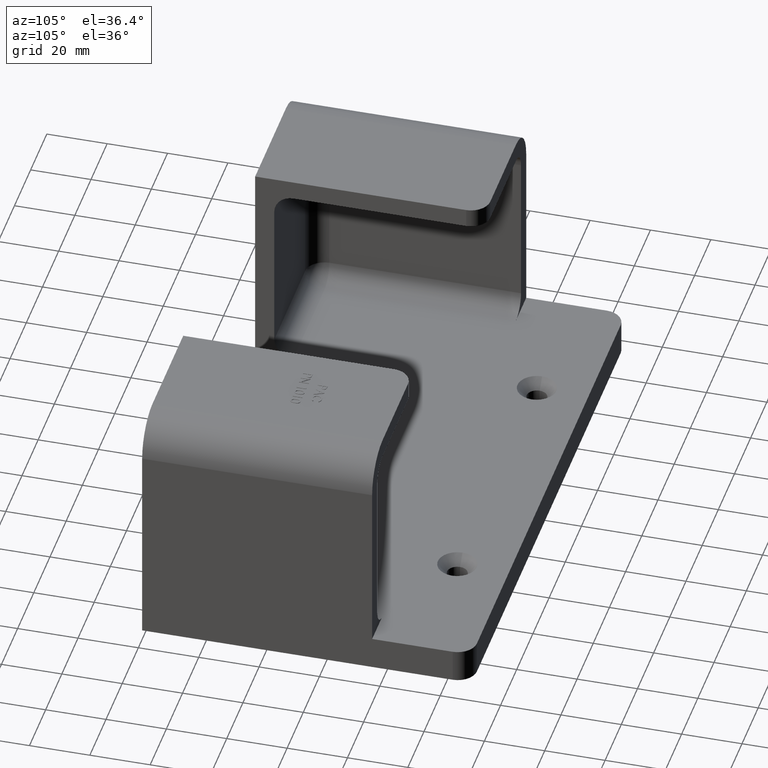
[diagram: clean part render]
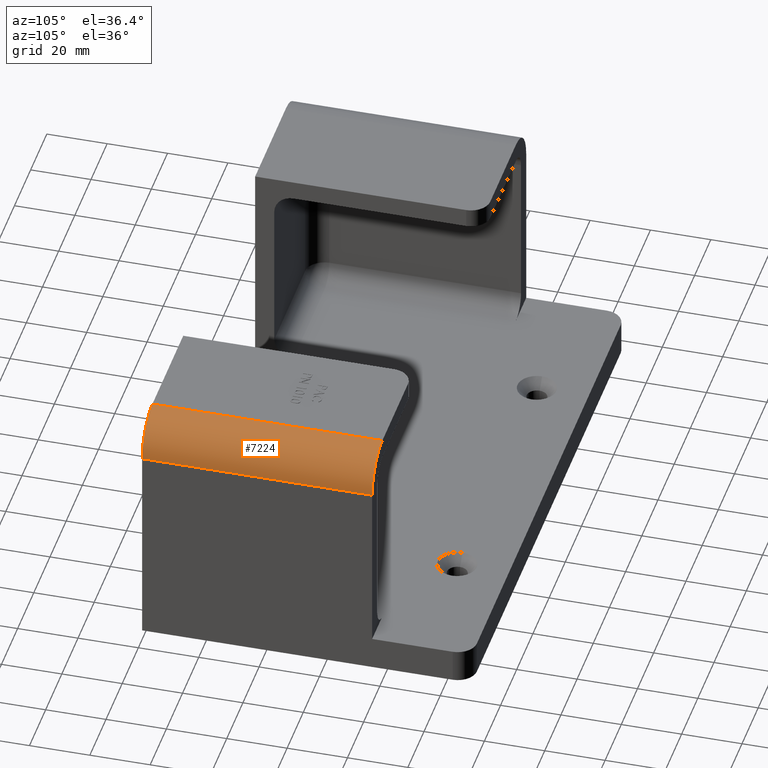
[diagram: same view with one face highlighted and labeled with its STEP entity id]
A machine part, auxiliary view. The second image highlights one B-rep face of the part: STEP entity #7224.
In plain terms, the highlighted cylindrical surface (partial cylindrical patch) has radius 12.7 mm, axis along (-0, -1, -0).
Its self-contained STEP definition (entity closure, byte-faithful):
#65 = ORIENTED_EDGE ( 'NONE', *, *, #2860, .T. ) ;
#82 = ORIENTED_EDGE ( 'NONE', *, *, #2859, .F. ) ;
#83 = ORIENTED_EDGE ( 'NONE', *, *, #2858, .T. ) ;
#141 = EDGE_LOOP ( 'NONE', ( #82, #83, #1922, #65 ) ) ;
#535 = VERTEX_POINT ( 'NONE', #5577 ) ;
#538 = VERTEX_POINT ( 'NONE', #5481 ) ;
#889 = DIRECTION ( 'NONE',  ( -0.0000000000000000000, -1.000000000000000000, -0.0000000000000000000 ) ) ;
#891 = DIRECTION ( 'NONE',  ( 0.0000000000000000000, 1.000000000000000000, -0.0000000000000000000 ) ) ;
#892 = DIRECTION ( 'NONE',  ( 0.0000000000000000000, 0.0000000000000000000, -1.000000000000000000 ) ) ;
#1382 = CARTESIAN_POINT ( 'NONE',  ( 3.749999999999999100, 4.299999999999999800, 2.687499999999999600 ) ) ;
#1922 = ORIENTED_EDGE ( 'NONE', *, *, #2794, .T. ) ;
#2367 = AXIS2_PLACEMENT_3D ( 'NONE', #4868, #4869, #4861 ) ;
#2583 = AXIS2_PLACEMENT_3D ( 'NONE', #6615, #891, #892 ) ;
#2587 = AXIS2_PLACEMENT_3D ( 'NONE', #6610, #6619, #6620 ) ;
#2794 = EDGE_CURVE ( 'NONE', #535, #538, #3426, .T. ) ;
#2858 = EDGE_CURVE ( 'NONE', #5443, #535, #3529, .T. ) ;
#2859 = EDGE_CURVE ( 'NONE', #5443, #5444, #3509, .T. ) ;
#2860 = EDGE_CURVE ( 'NONE', #538, #5444, #3531, .T. ) ;
#3129 = CARTESIAN_POINT ( 'NONE',  ( 3.250000000000000000, 4.299999999999999800, 3.187499999999998700 ) ) ;
#3134 = DIRECTION ( 'NONE',  ( -0.0000000000000000000, -1.000000000000000000, -0.0000000000000000000 ) ) ;
#3426 = LINE ( 'NONE', #3129, #3433 ) ;
#3433 = VECTOR ( 'NONE', #3134, 39.37007874015748100 ) ;
#3509 = LINE ( 'NONE', #1382, #3526 ) ;
#3526 = VECTOR ( 'NONE', #889, 39.37007874015748100 ) ;
#3529 = CIRCLE ( 'NONE', #2587, 0.4999999999999993300 ) ;
#3531 = CIRCLE ( 'NONE', #2583, 0.4999999999999993300 ) ;
#4580 = FACE_OUTER_BOUND ( 'NONE', #141, .T. ) ;
#4582 = CYLINDRICAL_SURFACE ( 'NONE', #2367, 0.4999999999999993300 ) ;
#4861 = DIRECTION ( 'NONE',  ( 0.0000000000000000000, 0.0000000000000000000, -1.000000000000000000 ) ) ;
#4868 = CARTESIAN_POINT ( 'NONE',  ( 3.250000000000000400, 4.299999999999999800, 2.687499999999999600 ) ) ;
#4869 = DIRECTION ( 'NONE',  ( -0.0000000000000000000, -1.000000000000000000, -0.0000000000000000000 ) ) ;
#5443 = VERTEX_POINT ( 'NONE', #6280 ) ;
#5444 = VERTEX_POINT ( 'NONE', #6281 ) ;
#5481 = CARTESIAN_POINT ( 'NONE',  ( 3.250000000000000000, 0.0000000000000000000, 3.187499999999998700 ) ) ;
#5577 = CARTESIAN_POINT ( 'NONE',  ( 3.250000000000000400, 3.000000000000000400, 3.187500000000000000 ) ) ;
#6280 = CARTESIAN_POINT ( 'NONE',  ( 3.750000000000000000, 3.000000000000000400, 2.687500000000000400 ) ) ;
#6281 = CARTESIAN_POINT ( 'NONE',  ( 3.749999999999999100, 0.0000000000000000000, 2.687499999999999600 ) ) ;
#6610 = CARTESIAN_POINT ( 'NONE',  ( 3.250000000000000400, 3.000000000000000400, 2.687499999999999600 ) ) ;
#6615 = CARTESIAN_POINT ( 'NONE',  ( 3.250000000000000400, 0.0000000000000000000, 2.687499999999999600 ) ) ;
#6619 = DIRECTION ( 'NONE',  ( 0.0000000000000000000, -1.000000000000000000, 0.0000000000000000000 ) ) ;
#6620 = DIRECTION ( 'NONE',  ( 0.0000000000000000000, 0.0000000000000000000, -1.000000000000000000 ) ) ;
#7224 = ADVANCED_FACE ( 'NONE', ( #4580 ), #4582, .T. ) ;